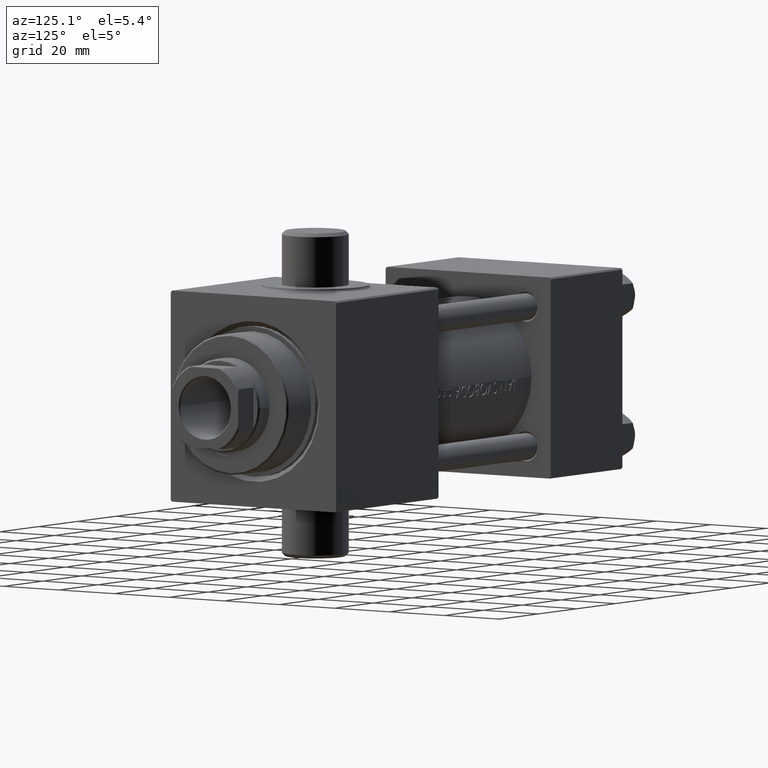
[diagram: clean part render]
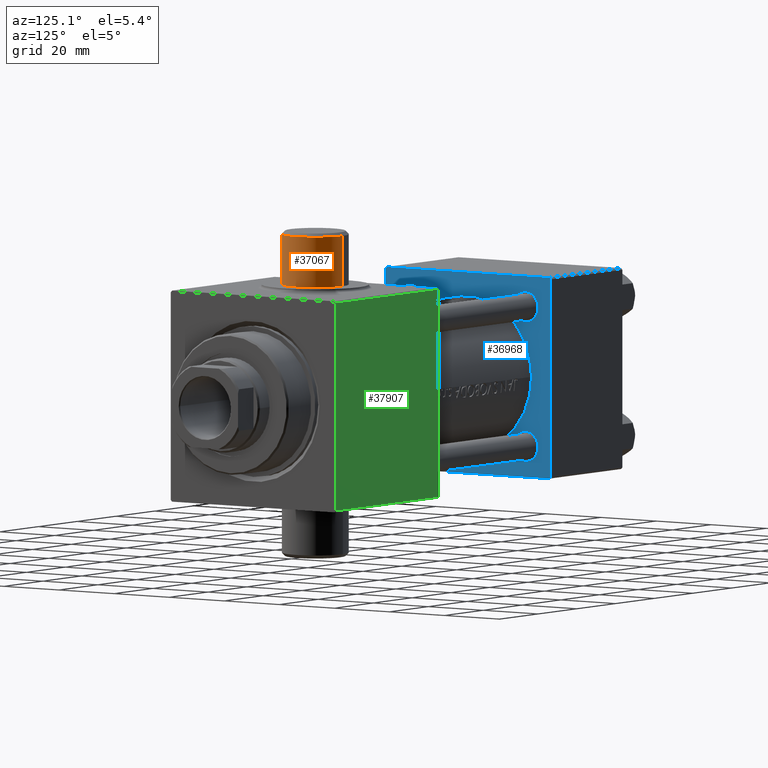
[diagram: same view with three faces highlighted in distinct colors, each labeled with its STEP entity id]
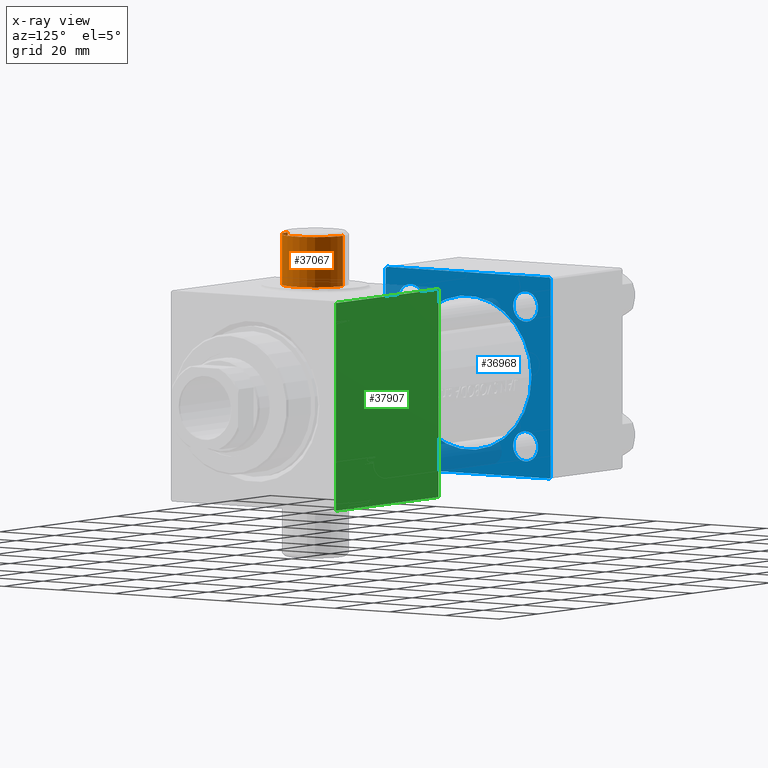
[diagram: x-ray of the same camera — body ghosted, the three highlighted faces saturated]
A machine part, auxiliary view with three faces highlighted in distinct colors.
The next image is the same camera in x-ray (body ghosted, the three faces saturated) — at least one of them is partly hidden behind the body in this view.
Their STEP definitions:

[orange] entity #37067 — the highlighted cylindrical surface (edge-blend (fillet) strip) has radius 10 mm, axis along (0, 0, -1).
#226 = DIRECTION ( 'NONE',  ( 0.000000000000000000, -1.000000000000000000, -8.673617379884036705E-17 ) ) ;
#2142 = AXIS2_PLACEMENT_3D ( 'NONE', #46250, #24245, #18120 ) ;
#2970 = FACE_OUTER_BOUND ( 'NONE', #34709, .T. ) ;
#3198 = CARTESIAN_POINT ( 'NONE',  ( 115.9999999999999858, -48.50000000000000711, -1.474514954580286425E-15 ) ) ;
#6256 = DIRECTION ( 'NONE',  ( -0.000000000000000000, 1.000000000000000000, 8.673617379884036705E-17 ) ) ;
#8426 = DIRECTION ( 'NONE',  ( 0.000000000000000000, 0.000000000000000000, -1.000000000000000000 ) ) ;
#10266 = AXIS2_PLACEMENT_3D ( 'NONE', #21987, #226, #8426 ) ;
#12341 = ORIENTED_EDGE ( 'NONE', *, *, #23893, .T. ) ;
#13721 = CYLINDRICAL_SURFACE ( 'NONE', #34579, 10.00000000000000888 ) ;
#14157 = VECTOR ( 'NONE', #6256, 1000.000000000000000 ) ;
#14781 = VECTOR ( 'NONE', #37334, 1000.000000000000000 ) ;
#17457 = DIRECTION ( 'NONE',  ( -0.000000000000000000, 1.000000000000000000, 8.673617379884036705E-17 ) ) ;
#17619 = LINE ( 'NONE', #39644, #14157 ) ;
#18120 = DIRECTION ( 'NONE',  ( 0.000000000000000000, 0.000000000000000000, -1.000000000000000000 ) ) ;
#18765 = ORIENTED_EDGE ( 'NONE', *, *, #25801, .F. ) ;
#20202 = EDGE_CURVE ( 'NONE', #35894, #40332, #40953, .T. ) ;
#20830 = EDGE_CURVE ( 'NONE', #38325, #35894, #44593, .T. ) ;
#21987 = CARTESIAN_POINT ( 'NONE',  ( 115.9999999999999858, -32.50000000000000711, -8.673617379884042868E-17 ) ) ;
#22306 = CIRCLE ( 'NONE', #2142, 10.00000000000000888 ) ;
#23893 = EDGE_CURVE ( 'NONE', #24157, #38325, #22306, .T. ) ;
#24157 = VERTEX_POINT ( 'NONE', #38710 ) ;
#24245 = DIRECTION ( 'NONE',  ( 0.000000000000000000, 1.000000000000000000, 8.673617379884033007E-17 ) ) ;
#24730 = DIRECTION ( 'NONE',  ( 0.000000000000000000, 0.000000000000000000, 1.000000000000000000 ) ) ;
#25801 = EDGE_CURVE ( 'NONE', #24157, #40332, #17619, .T. ) ;
#26095 = CARTESIAN_POINT ( 'NONE',  ( 115.9999999999999858, -48.50000000000000711, -10.00000000000001066 ) ) ;
#27491 = ORIENTED_EDGE ( 'NONE', *, *, #20202, .T. ) ;
#34579 = AXIS2_PLACEMENT_3D ( 'NONE', #3198, #17457, #24730 ) ;
#34709 = EDGE_LOOP ( 'NONE', ( #12341, #43768, #27491, #18765 ) ) ;
#35894 = VERTEX_POINT ( 'NONE', #40892 ) ;
#37067 = ADVANCED_FACE ( 'NONE', ( #2970 ), #13721, .T. ) ;
#37334 = DIRECTION ( 'NONE',  ( -0.000000000000000000, 1.000000000000000000, 8.673617379884036705E-17 ) ) ;
#38325 = VERTEX_POINT ( 'NONE', #40811 ) ;
#38710 = CARTESIAN_POINT ( 'NONE',  ( 115.9999999999999858, -47.50000000000005684, 10.00000000000000711 ) ) ;
#39644 = CARTESIAN_POINT ( 'NONE',  ( 115.9999999999999858, -48.50000000000000711, 10.00000000000000711 ) ) ;
#40332 = VERTEX_POINT ( 'NONE', #45380 ) ;
#40811 = CARTESIAN_POINT ( 'NONE',  ( 115.9999999999999858, -47.50000000000005684, -10.00000000000001066 ) ) ;
#40892 = CARTESIAN_POINT ( 'NONE',  ( 115.9999999999999858, -32.50000000000000711, -10.00000000000000888 ) ) ;
#40953 = CIRCLE ( 'NONE', #10266, 10.00000000000000888 ) ;
#43768 = ORIENTED_EDGE ( 'NONE', *, *, #20830, .T. ) ;
#44593 = LINE ( 'NONE', #26095, #14781 ) ;
#45380 = CARTESIAN_POINT ( 'NONE',  ( 115.9999999999999858, -32.50000000000000711, 10.00000000000000888 ) ) ;
#46250 = CARTESIAN_POINT ( 'NONE',  ( 115.9999999999999858, -47.50000000000005684, -1.387778780781450211E-15 ) ) ;

[blue] entity #36968 — the highlighted planar face has unit normal (-1, 0, -0).
#104 = VERTEX_POINT ( 'NONE', #36076 ) ;
#304 = CARTESIAN_POINT ( 'NONE',  ( 37.00000000000000000, -3.469446951953614189E-15, 0.000000000000000000 ) ) ;
#551 = ORIENTED_EDGE ( 'NONE', *, *, #15354, .T. ) ;
#592 = VECTOR ( 'NONE', #8197, 1000.000000000000000 ) ;
#836 = CARTESIAN_POINT ( 'NONE',  ( 37.00000000000000000, -29.49999999999998579, 29.99999999999999289 ) ) ;
#1047 = CIRCLE ( 'NONE', #36957, 23.00000000000000000 ) ;
#1501 = VERTEX_POINT ( 'NONE', #31032 ) ;
#2346 = DIRECTION ( 'NONE',  ( 0.000000000000000000, 0.000000000000000000, -1.000000000000000000 ) ) ;
#2431 = CARTESIAN_POINT ( 'NONE',  ( 37.00000000000000000, -20.84999999999999076, 16.34999999999998721 ) ) ;
#2941 = CIRCLE ( 'NONE', #29871, 4.500000000000017764 ) ;
#2955 = ORIENTED_EDGE ( 'NONE', *, *, #40081, .F. ) ;
#3554 = CARTESIAN_POINT ( 'NONE',  ( 37.00000000000000000, 20.84999999999999787, -20.85000000000000142 ) ) ;
#3819 = CARTESIAN_POINT ( 'NONE',  ( 37.00000000000000000, -20.84999999999999076, -16.34999999999998721 ) ) ;
#3853 = CARTESIAN_POINT ( 'NONE',  ( 37.00000000000000000, 20.84999999999999787, 20.85000000000000142 ) ) ;
#3968 = DIRECTION ( 'NONE',  ( -1.000000000000000000, 0.000000000000000000, -0.000000000000000000 ) ) ;
#3992 = CARTESIAN_POINT ( 'NONE',  ( 37.00000000000000000, 29.49999999999997868, -30.00000000000000000 ) ) ;
#4100 = DIRECTION ( 'NONE',  ( -1.000000000000000000, 0.000000000000000000, -0.000000000000000000 ) ) ;
#4601 = VERTEX_POINT ( 'NONE', #24437 ) ;
#4709 = VECTOR ( 'NONE', #11904, 1000.000000000000000 ) ;
#4783 = LINE ( 'NONE', #5240, #21796 ) ;
#5113 = AXIS2_PLACEMENT_3D ( 'NONE', #36338, #39860, #28844 ) ;
#5240 = CARTESIAN_POINT ( 'NONE',  ( 37.00000000000000000, 29.49999999999999289, 30.00000000000000000 ) ) ;
#5383 = CARTESIAN_POINT ( 'NONE',  ( 37.00000000000000000, -30.00000000000000000, 29.49999999999999289 ) ) ;
#5423 = AXIS2_PLACEMENT_3D ( 'NONE', #26814, #27510, #20482 ) ;
#6114 = VERTEX_POINT ( 'NONE', #31148 ) ;
#6337 = CARTESIAN_POINT ( 'NONE',  ( 37.00000000000000000, -20.84999999999999076, 20.85000000000000497 ) ) ;
#6491 = AXIS2_PLACEMENT_3D ( 'NONE', #6337, #27869, #17305 ) ;
#6564 = ORIENTED_EDGE ( 'NONE', *, *, #45626, .T. ) ;
#6616 = DIRECTION ( 'NONE',  ( 0.000000000000000000, 0.000000000000000000, 1.000000000000000000 ) ) ;
#6878 = CARTESIAN_POINT ( 'NONE',  ( 37.00000000000000000, 20.84999999999999787, 25.35000000000001918 ) ) ;
#7003 = ORIENTED_EDGE ( 'NONE', *, *, #18436, .T. ) ;
#7906 = DIRECTION ( 'NONE',  ( -0.000000000000000000, 0.7071067811865574537, 0.7071067811865376918 ) ) ;
#8072 = VERTEX_POINT ( 'NONE', #28247 ) ;
#8175 = LINE ( 'NONE', #15641, #4709 ) ;
#8197 = DIRECTION ( 'NONE',  ( 0.000000000000000000, -1.000000000000000000, -1.156482317317871725E-16 ) ) ;
#8867 = AXIS2_PLACEMENT_3D ( 'NONE', #29011, #3968, #10305 ) ;
#9129 = DIRECTION ( 'NONE',  ( -1.000000000000000000, 0.000000000000000000, -0.000000000000000000 ) ) ;
#9443 = CARTESIAN_POINT ( 'NONE',  ( 37.00000000000000000, 29.99999999999999289, 29.50000000000000000 ) ) ;
#9580 = CARTESIAN_POINT ( 'NONE',  ( 37.00000000000000000, 20.84999999999999787, -25.35000000000001918 ) ) ;
#9702 = VECTOR ( 'NONE', #45181, 1000.000000000000114 ) ;
#10288 = CARTESIAN_POINT ( 'NONE',  ( 37.00000000000000000, 29.99999999999999289, -29.50000000000000000 ) ) ;
#10305 = DIRECTION ( 'NONE',  ( 0.000000000000000000, 0.000000000000000000, 1.000000000000000000 ) ) ;
#10482 = EDGE_CURVE ( 'NONE', #37389, #22227, #2941, .T. ) ;
#10495 = EDGE_CURVE ( 'NONE', #43064, #26206, #23862, .T. ) ;
#11123 = DIRECTION ( 'NONE',  ( 0.000000000000000000, 0.000000000000000000, 1.000000000000000000 ) ) ;
#11320 = ORIENTED_EDGE ( 'NONE', *, *, #25567, .T. ) ;
#11794 = DIRECTION ( 'NONE',  ( 0.000000000000000000, -0.7071067811865474617, 0.7071067811865474617 ) ) ;
#11904 = DIRECTION ( 'NONE',  ( 0.000000000000000000, -1.000000000000000000, -1.156482317317871725E-16 ) ) ;
#12568 = FACE_BOUND ( 'NONE', #32745, .T. ) ;
#12619 = CARTESIAN_POINT ( 'NONE',  ( 37.00000000000000000, -30.00000000000000000, 29.49999999999999289 ) ) ;
#12801 = PLANE ( 'NONE',  #33079 ) ;
#13035 = DIRECTION ( 'NONE',  ( -0.000000000000000000, 0.000000000000000000, 1.000000000000000000 ) ) ;
#14120 = DIRECTION ( 'NONE',  ( 0.000000000000000000, 0.000000000000000000, 1.000000000000000000 ) ) ;
#14328 = EDGE_CURVE ( 'NONE', #30184, #16298, #18833, .T. ) ;
#15354 = EDGE_CURVE ( 'NONE', #37314, #104, #44300, .T. ) ;
#15641 = CARTESIAN_POINT ( 'NONE',  ( 37.00000000000000000, 29.99999999999999289, -30.00000000000000000 ) ) ;
#15838 = EDGE_CURVE ( 'NONE', #8072, #37435, #45480, .T. ) ;
#16298 = VERTEX_POINT ( 'NONE', #10288 ) ;
#16549 = CARTESIAN_POINT ( 'NONE',  ( 37.00000000000000000, 0.000000000000000000, 0.000000000000000000 ) ) ;
#16900 = VECTOR ( 'NONE', #23705, 1000.000000000000114 ) ;
#17207 = DIRECTION ( 'NONE',  ( 0.000000000000000000, 0.000000000000000000, 1.000000000000000000 ) ) ;
#17305 = DIRECTION ( 'NONE',  ( 0.000000000000000000, 0.000000000000000000, 1.000000000000000000 ) ) ;
#17958 = CIRCLE ( 'NONE', #42686, 4.500000000000017764 ) ;
#18124 = EDGE_LOOP ( 'NONE', ( #39348, #39702 ) ) ;
#18177 = ORIENTED_EDGE ( 'NONE', *, *, #15838, .T. ) ;
#18335 = DIRECTION ( 'NONE',  ( -1.000000000000000000, 0.000000000000000000, -0.000000000000000000 ) ) ;
#18436 = EDGE_CURVE ( 'NONE', #22144, #6114, #20688, .T. ) ;
#18833 = LINE ( 'NONE', #33369, #45686 ) ;
#19459 = VERTEX_POINT ( 'NONE', #9580 ) ;
#19834 = AXIS2_PLACEMENT_3D ( 'NONE', #3853, #18335, #42961 ) ;
#19868 = AXIS2_PLACEMENT_3D ( 'NONE', #23788, #27767, #17207 ) ;
#19993 = VERTEX_POINT ( 'NONE', #34915 ) ;
#20112 = DIRECTION ( 'NONE',  ( 0.000000000000000000, 0.000000000000000000, 1.000000000000000000 ) ) ;
#20482 = DIRECTION ( 'NONE',  ( 0.000000000000000000, 0.000000000000000000, 1.000000000000000000 ) ) ;
#20515 = VECTOR ( 'NONE', #2346, 1000.000000000000000 ) ;
#20664 = DIRECTION ( 'NONE',  ( -1.000000000000000000, 0.000000000000000000, -0.000000000000000000 ) ) ;
#20688 = CIRCLE ( 'NONE', #6491, 4.500000000000017764 ) ;
#20980 = EDGE_CURVE ( 'NONE', #19993, #43064, #28574, .T. ) ;
#21647 = EDGE_CURVE ( 'NONE', #45613, #19459, #30520, .T. ) ;
#21796 = VECTOR ( 'NONE', #11794, 1000.000000000000114 ) ;
#22116 = DIRECTION ( 'NONE',  ( 0.000000000000000000, 0.000000000000000000, -1.000000000000000000 ) ) ;
#22144 = VERTEX_POINT ( 'NONE', #2431 ) ;
#22189 = EDGE_CURVE ( 'NONE', #22227, #37389, #23046, .T. ) ;
#22227 = VERTEX_POINT ( 'NONE', #24876 ) ;
#22500 = AXIS2_PLACEMENT_3D ( 'NONE', #3554, #20664, #6616 ) ;
#22574 = CARTESIAN_POINT ( 'NONE',  ( 37.00000000000000000, -20.84999999999999076, 20.85000000000000497 ) ) ;
#22696 = ORIENTED_EDGE ( 'NONE', *, *, #14328, .F. ) ;
#23046 = CIRCLE ( 'NONE', #5113, 4.500000000000017764 ) ;
#23231 = CARTESIAN_POINT ( 'NONE',  ( 37.00000000000000000, -29.50000000000000000, -30.00000000000000711 ) ) ;
#23705 = DIRECTION ( 'NONE',  ( 0.000000000000000000, 0.7071067811865474617, -0.7071067811865474617 ) ) ;
#23788 = CARTESIAN_POINT ( 'NONE',  ( 37.00000000000000000, -3.469446951953614189E-15, 0.000000000000000000 ) ) ;
#23862 = LINE ( 'NONE', #12619, #9702 ) ;
#24437 = CARTESIAN_POINT ( 'NONE',  ( 37.00000000000000000, -3.469446951953614189E-15, 23.00000000000000000 ) ) ;
#24876 = CARTESIAN_POINT ( 'NONE',  ( 37.00000000000000000, -20.84999999999999076, -25.35000000000002274 ) ) ;
#25567 = EDGE_CURVE ( 'NONE', #37644, #16298, #29213, .T. ) ;
#26206 = VERTEX_POINT ( 'NONE', #5383 ) ;
#26814 = CARTESIAN_POINT ( 'NONE',  ( 37.00000000000000000, 20.84999999999999787, 20.85000000000000142 ) ) ;
#27086 = ORIENTED_EDGE ( 'NONE', *, *, #36157, .T. ) ;
#27306 = ORIENTED_EDGE ( 'NONE', *, *, #35265, .T. ) ;
#27510 = DIRECTION ( 'NONE',  ( -1.000000000000000000, 0.000000000000000000, -0.000000000000000000 ) ) ;
#27767 = DIRECTION ( 'NONE',  ( 1.000000000000000000, -0.000000000000000000, 0.000000000000000000 ) ) ;
#27869 = DIRECTION ( 'NONE',  ( -1.000000000000000000, 0.000000000000000000, -0.000000000000000000 ) ) ;
#28205 = EDGE_CURVE ( 'NONE', #6114, #22144, #17958, .T. ) ;
#28247 = CARTESIAN_POINT ( 'NONE',  ( 37.00000000000000000, -30.00000000000000000, -29.50000000000001776 ) ) ;
#28574 = LINE ( 'NONE', #36755, #592 ) ;
#28743 = ORIENTED_EDGE ( 'NONE', *, *, #42756, .T. ) ;
#28844 = DIRECTION ( 'NONE',  ( 0.000000000000000000, 0.000000000000000000, 1.000000000000000000 ) ) ;
#29011 = CARTESIAN_POINT ( 'NONE',  ( 37.00000000000000000, 20.84999999999999787, -20.85000000000000142 ) ) ;
#29213 = LINE ( 'NONE', #32504, #39609 ) ;
#29871 = AXIS2_PLACEMENT_3D ( 'NONE', #41207, #9129, #20112 ) ;
#30184 = VERTEX_POINT ( 'NONE', #9443 ) ;
#30235 = CIRCLE ( 'NONE', #19868, 23.00000000000000000 ) ;
#30520 = CIRCLE ( 'NONE', #8867, 4.500000000000017764 ) ;
#30609 = FACE_OUTER_BOUND ( 'NONE', #43406, .T. ) ;
#31032 = CARTESIAN_POINT ( 'NONE',  ( 37.00000000000000000, -6.527593139147022314E-16, -23.00000000000000000 ) ) ;
#31148 = CARTESIAN_POINT ( 'NONE',  ( 37.00000000000000000, -20.84999999999999076, 25.35000000000002274 ) ) ;
#31449 = ORIENTED_EDGE ( 'NONE', *, *, #20980, .T. ) ;
#32504 = CARTESIAN_POINT ( 'NONE',  ( 37.00000000000000000, 29.99999999999999289, -29.50000000000000000 ) ) ;
#32745 = EDGE_LOOP ( 'NONE', ( #7003, #38164 ) ) ;
#33079 = AXIS2_PLACEMENT_3D ( 'NONE', #16549, #41614, #13035 ) ;
#33369 = CARTESIAN_POINT ( 'NONE',  ( 37.00000000000000000, 29.99999999999999289, 30.00000000000000000 ) ) ;
#34365 = FACE_BOUND ( 'NONE', #41135, .T. ) ;
#34915 = CARTESIAN_POINT ( 'NONE',  ( 37.00000000000000000, 29.49999999999999289, 30.00000000000000000 ) ) ;
#35265 = EDGE_CURVE ( 'NONE', #19459, #45613, #42718, .T. ) ;
#36071 = ORIENTED_EDGE ( 'NONE', *, *, #46263, .F. ) ;
#36076 = CARTESIAN_POINT ( 'NONE',  ( 37.00000000000000000, 20.84999999999999787, 16.34999999999998366 ) ) ;
#36157 = EDGE_CURVE ( 'NONE', #30184, #19993, #4783, .T. ) ;
#36338 = CARTESIAN_POINT ( 'NONE',  ( 37.00000000000000000, -20.84999999999999076, -20.85000000000000497 ) ) ;
#36755 = CARTESIAN_POINT ( 'NONE',  ( 37.00000000000000000, 29.99999999999999289, 30.00000000000000000 ) ) ;
#36923 = ORIENTED_EDGE ( 'NONE', *, *, #42269, .F. ) ;
#36957 = AXIS2_PLACEMENT_3D ( 'NONE', #304, #39419, #14120 ) ;
#36968 = ADVANCED_FACE ( 'NONE', ( #44655, #37637, #12568, #34365, #40913, #30609 ), #12801, .F. ) ;
#37314 = VERTEX_POINT ( 'NONE', #6878 ) ;
#37389 = VERTEX_POINT ( 'NONE', #3819 ) ;
#37435 = VERTEX_POINT ( 'NONE', #23231 ) ;
#37637 = FACE_BOUND ( 'NONE', #44103, .T. ) ;
#37644 = VERTEX_POINT ( 'NONE', #3992 ) ;
#38164 = ORIENTED_EDGE ( 'NONE', *, *, #28205, .T. ) ;
#38171 = CARTESIAN_POINT ( 'NONE',  ( 37.00000000000000000, -30.00000000000000000, 29.99999999999999289 ) ) ;
#39348 = ORIENTED_EDGE ( 'NONE', *, *, #22189, .T. ) ;
#39419 = DIRECTION ( 'NONE',  ( 1.000000000000000000, -0.000000000000000000, 0.000000000000000000 ) ) ;
#39609 = VECTOR ( 'NONE', #7906, 999.9999999999998863 ) ;
#39680 = CARTESIAN_POINT ( 'NONE',  ( 37.00000000000000000, 20.84999999999999787, -16.34999999999998366 ) ) ;
#39702 = ORIENTED_EDGE ( 'NONE', *, *, #10482, .T. ) ;
#39860 = DIRECTION ( 'NONE',  ( -1.000000000000000000, 0.000000000000000000, -0.000000000000000000 ) ) ;
#40081 = EDGE_CURVE ( 'NONE', #37644, #37435, #8175, .T. ) ;
#40913 = FACE_BOUND ( 'NONE', #44404, .T. ) ;
#40987 = LINE ( 'NONE', #38171, #20515 ) ;
#41135 = EDGE_LOOP ( 'NONE', ( #6564, #551 ) ) ;
#41207 = CARTESIAN_POINT ( 'NONE',  ( 37.00000000000000000, -20.84999999999999076, -20.85000000000000497 ) ) ;
#41614 = DIRECTION ( 'NONE',  ( -1.000000000000000000, 0.000000000000000000, -0.000000000000000000 ) ) ;
#41971 = CARTESIAN_POINT ( 'NONE',  ( 37.00000000000000000, -29.50000000000001066, -30.00000000000000711 ) ) ;
#42269 = EDGE_CURVE ( 'NONE', #4601, #1501, #1047, .T. ) ;
#42686 = AXIS2_PLACEMENT_3D ( 'NONE', #22574, #4100, #11123 ) ;
#42718 = CIRCLE ( 'NONE', #22500, 4.500000000000017764 ) ;
#42756 = EDGE_CURVE ( 'NONE', #26206, #8072, #40987, .T. ) ;
#42961 = DIRECTION ( 'NONE',  ( 0.000000000000000000, 0.000000000000000000, 1.000000000000000000 ) ) ;
#43037 = CIRCLE ( 'NONE', #19834, 4.500000000000017764 ) ;
#43064 = VERTEX_POINT ( 'NONE', #836 ) ;
#43406 = EDGE_LOOP ( 'NONE', ( #2955, #11320, #22696, #27086, #31449, #45165, #28743, #18177 ) ) ;
#43974 = ORIENTED_EDGE ( 'NONE', *, *, #21647, .T. ) ;
#44103 = EDGE_LOOP ( 'NONE', ( #27306, #43974 ) ) ;
#44300 = CIRCLE ( 'NONE', #5423, 4.500000000000017764 ) ;
#44404 = EDGE_LOOP ( 'NONE', ( #36923, #36071 ) ) ;
#44655 = FACE_BOUND ( 'NONE', #18124, .T. ) ;
#45165 = ORIENTED_EDGE ( 'NONE', *, *, #10495, .T. ) ;
#45181 = DIRECTION ( 'NONE',  ( -0.000000000000000000, -0.7071067811865474617, -0.7071067811865474617 ) ) ;
#45480 = LINE ( 'NONE', #41971, #16900 ) ;
#45613 = VERTEX_POINT ( 'NONE', #39680 ) ;
#45626 = EDGE_CURVE ( 'NONE', #104, #37314, #43037, .T. ) ;
#45686 = VECTOR ( 'NONE', #22116, 1000.000000000000000 ) ;
#46263 = EDGE_CURVE ( 'NONE', #1501, #4601, #30235, .T. ) ;

[green] entity #37907 — the highlighted planar face has unit normal (0, -1, -0).
#3920 = EDGE_CURVE ( 'NONE', #36616, #26315, #30231, .T. ) ;
#4402 = VECTOR ( 'NONE', #15476, 1000.000000000000000 ) ;
#4736 = LINE ( 'NONE', #18521, #4402 ) ;
#5886 = LINE ( 'NONE', #41491, #10782 ) ;
#7452 = DIRECTION ( 'NONE',  ( 0.000000000000000000, 5.507058653894625853E-17, -1.000000000000000000 ) ) ;
#8165 = CARTESIAN_POINT ( 'NONE',  ( 148.0000000000000000, 31.00000000000001421, 29.99999999999999289 ) ) ;
#8939 = VERTEX_POINT ( 'NONE', #8165 ) ;
#9937 = EDGE_CURVE ( 'NONE', #8939, #34803, #4736, .T. ) ;
#10782 = VECTOR ( 'NONE', #41259, 1000.000000000000000 ) ;
#11668 = CARTESIAN_POINT ( 'NONE',  ( 95.00000000000000000, 31.00000000000001421, 29.99999999999999289 ) ) ;
#12424 = DIRECTION ( 'NONE',  ( 1.000000000000000000, 0.000000000000000000, 0.000000000000000000 ) ) ;
#12554 = VECTOR ( 'NONE', #12424, 1000.000000000000000 ) ;
#14745 = ORIENTED_EDGE ( 'NONE', *, *, #3920, .T. ) ;
#15476 = DIRECTION ( 'NONE',  ( -1.000000000000000000, 0.000000000000000000, 0.000000000000000000 ) ) ;
#17009 = EDGE_CURVE ( 'NONE', #8939, #26315, #18555, .T. ) ;
#18199 = PLANE ( 'NONE',  #42051 ) ;
#18521 = CARTESIAN_POINT ( 'NONE',  ( 95.00000000000000000, 31.00000000000001421, 29.99999999999999289 ) ) ;
#18555 = LINE ( 'NONE', #25598, #29640 ) ;
#21846 = DIRECTION ( 'NONE',  ( 0.000000000000000000, -1.000000000000000000, -5.507058653894625853E-17 ) ) ;
#21953 = CARTESIAN_POINT ( 'NONE',  ( 148.0000000000000000, 31.49999999999998579, 29.99999999999999289 ) ) ;
#23793 = CARTESIAN_POINT ( 'NONE',  ( 95.00000000000000000, -31.00000000000000711, 29.99999999999998934 ) ) ;
#25598 = CARTESIAN_POINT ( 'NONE',  ( 148.0000000000000000, 31.49999999999998579, 29.99999999999999289 ) ) ;
#26315 = VERTEX_POINT ( 'NONE', #33868 ) ;
#28002 = EDGE_LOOP ( 'NONE', ( #33704, #14745, #32148, #45662 ) ) ;
#29640 = VECTOR ( 'NONE', #21846, 1000.000000000000000 ) ;
#30231 = LINE ( 'NONE', #44523, #12554 ) ;
#32148 = ORIENTED_EDGE ( 'NONE', *, *, #17009, .F. ) ;
#33704 = ORIENTED_EDGE ( 'NONE', *, *, #41968, .T. ) ;
#33868 = CARTESIAN_POINT ( 'NONE',  ( 148.0000000000000000, -31.00000000000000711, 29.99999999999998934 ) ) ;
#34803 = VERTEX_POINT ( 'NONE', #11668 ) ;
#36258 = DIRECTION ( 'NONE',  ( 0.000000000000000000, 1.000000000000000000, 5.507058653894625853E-17 ) ) ;
#36616 = VERTEX_POINT ( 'NONE', #23793 ) ;
#37907 = ADVANCED_FACE ( 'NONE', ( #39078 ), #18199, .F. ) ;
#39078 = FACE_OUTER_BOUND ( 'NONE', #28002, .T. ) ;
#41259 = DIRECTION ( 'NONE',  ( 0.000000000000000000, -1.000000000000000000, -5.507058653894625853E-17 ) ) ;
#41491 = CARTESIAN_POINT ( 'NONE',  ( 95.00000000000000000, 31.49999999999998579, 29.99999999999999289 ) ) ;
#41968 = EDGE_CURVE ( 'NONE', #34803, #36616, #5886, .T. ) ;
#42051 = AXIS2_PLACEMENT_3D ( 'NONE', #21953, #7452, #36258 ) ;
#44523 = CARTESIAN_POINT ( 'NONE',  ( 148.0000000000000000, -31.00000000000000711, 29.99999999999998934 ) ) ;
#45662 = ORIENTED_EDGE ( 'NONE', *, *, #9937, .T. ) ;